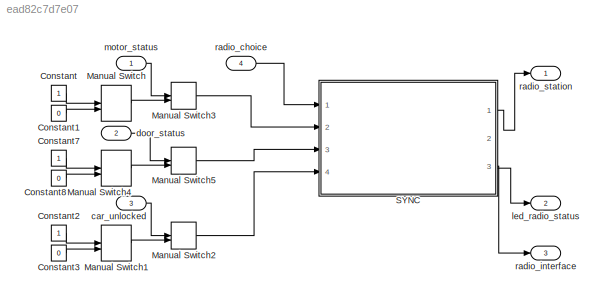
MODEL slx_ead82c7d7e07
KIND model
CONFIG AbsTol = auto
CONFIG EnableMultiTasking = off
CONFIG FixedStep = 0.1
CONFIG MaxStep = auto
CONFIG MinStep = auto
CONFIG RelTol = 1e-3
CONFIG SampleTimeConstraint = Unconstrained
CONFIG Solver = FixedStepAuto
CONFIG SolverName = FixedStepAuto
CONFIG StartTime = 0.0
CONFIG StopTime = 10
BLOCK [Constant] Constant
BLOCK [Constant] Constant1
  Value = 0
BLOCK [Constant] Constant2
BLOCK [Constant] Constant3
  Value = 0
BLOCK [Constant] Constant7
BLOCK [Constant] Constant8
  Value = 0
BLOCK [ManualSwitch] Manual Switch
  CurrentSetting = 0
BLOCK [ManualSwitch] Manual Switch1
  CurrentSetting = 0
BLOCK [ManualSwitch] Manual Switch2
BLOCK [ManualSwitch] Manual Switch3
BLOCK [ManualSwitch] Manual Switch4
  CurrentSetting = 0
BLOCK [ManualSwitch] Manual Switch5
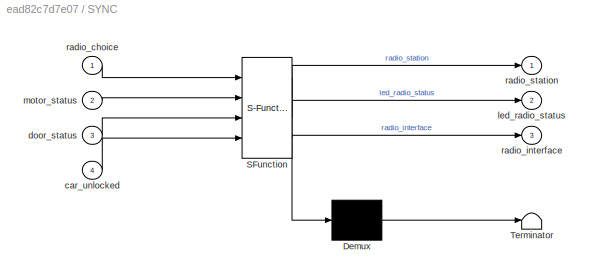
BLOCK [SubSystem] SYNC
  ErrorFcn = Stateflow.Translate.translate
  PermitHierarchicalResolution = ExplicitOnly
  Ports = [4, 3]
  RequestExecContextInheritance = off
  SFBlockType = Chart
  TreatAsAtomicUnit = on
BLOCK [Demux] SYNC/ Demux 
  Outputs = 1
  Ports = [1, 1]
BLOCK [S-Function] SYNC/ SFunction 
  EnableBusSupport = on
  FunctionName = sf_sfun
  PortCounts = [4 4]
  Ports = [4, 4]
  SFcnIsStateOwnerBlock = off
  SFunctionDeploymentMode = off
  Tag = Stateflow S-Function 4
BLOCK [Terminator] SYNC/ Terminator 
BLOCK [Inport] SYNC/car_unlocked
  IconDisplay = Port number
  Port = 4
BLOCK [Inport] SYNC/door_status
  IconDisplay = Port number
  Port = 3
BLOCK [Outport] SYNC/led_radio_status
  IconDisplay = Port number
  Port = 2
BLOCK [Inport] SYNC/motor_status
  IconDisplay = Port number
  Port = 2
BLOCK [Inport] SYNC/radio_choice
  IconDisplay = Port number
BLOCK [Outport] SYNC/radio_interface
  IconDisplay = Port number
  Port = 3
BLOCK [Outport] SYNC/radio_station
  IconDisplay = Port number
BLOCK [Inport] car_unlocked
  IconDisplay = Port number
  Port = 3
BLOCK [Inport] door_status
  IconDisplay = Port number
  Port = 2
BLOCK [Outport] led_radio_status
  IconDisplay = Port number
  Port = 2
BLOCK [Inport] motor_status
  IconDisplay = Port number
BLOCK [Inport] radio_choice
  IconDisplay = Port number
  Port = 4
BLOCK [Outport] radio_interface
  IconDisplay = Port number
  Port = 3
BLOCK [Outport] radio_station
  IconDisplay = Port number
LINE Constant1:1 -> Manual Switch:2
LINE Constant2:1 -> Manual Switch1:1
LINE Constant3:1 -> Manual Switch1:2
LINE Constant7:1 -> Manual Switch4:1
LINE Constant8:1 -> Manual Switch4:2
LINE Constant:1 -> Manual Switch:1
LINE Manual Switch1:1 -> Manual Switch2:2
LINE Manual Switch2:1 -> SYNC:4
LINE Manual Switch3:1 -> SYNC:2
LINE Manual Switch4:1 -> Manual Switch5:2
LINE Manual Switch5:1 -> SYNC:3
LINE Manual Switch:1 -> Manual Switch3:2
LINE SYNC:1 -> radio_station:1
LINE SYNC:2 -> led_radio_status:1
LINE SYNC:3 -> radio_interface:1
LINE car_unlocked:1 -> Manual Switch2:1
LINE door_status:1 -> Manual Switch5:1
LINE motor_status:1 -> Manual Switch3:1
LINE radio_choice:1 -> SYNC:1
CHART SYNC states=7 transitions=31
  STATE_LABEL 'radio_switching'
  STATE_LABEL 'Do not put any code along\nthe transitions that run\ndown the right side!'
  STATE_LABEL '%radio switching'
  STATE_LABEL '[radio_choice == Bahia_FM]'
  STATE_LABEL '{radio_station=88.7;}'
  STATE_LABEL '[radio_choice == Globo_FM]'
  STATE_LABEL '{radio_station=90.1;}'
  STATE_LABEL '[radio_choice == Jovenpan]'
  STATE_LABEL '{radio_station=91.3;}'
  STATE_LABEL '[radio_choice == transamericapop]'
  STATE_LABEL '{radio_station=88.7;}'
  STATE_LABEL '{radio_station=100.1;}'
  STATE_LABEL 'Do not put any code along\nthe transitions that run\ndown the right side!'
  STATE_LABEL 'door_unlock_and_open\n\nentry:\nlock_unlock=1;%porta destrancada\nduring:\nif (door_status==1)%se porta entreaberta\n    radio_interface=1; %interface de radio wellcome\n    led_radio_status=1; %led indicador on\nelseif (door_status==0)%se porta fechada\n    radio_interface=0;%interface de radio off\n    led_radio_status=0;%led indicador off\nend\n'
  STATE_LABEL '<!DOCTYPE HTML PUBLIC "-//W3C//DTD HTML 4.0//EN" "http://www.w3.org/TR/REC-html40/strict.dtd">\n<html><head><meta name="qrichtext" content="1" /><style type="text/css">\np, li { white-space: pre-wrap; }\n</style></head><body align="left" style=" font-family:\'Helvetica\'; font-size:12px; font-weight:400; font-style:normal;">\n<p align="left" style=" margin-top:0px; margin-bottom:0px; margin-left:0px; ma...<+163ch>'
  STATE_LABEL '<!DOCTYPE HTML PUBLIC "-//W3C//DTD HTML 4.0//EN" "http://www.w3.org/TR/REC-html40/strict.dtd">\n<html><head><meta name="qrichtext" content="1" /><style type="text/css">\np, li { white-space: pre-wrap; }\n</style></head><body align="left" style=" font-family:\'Helvetica\'; font-size:12px; font-weight:400; font-style:normal;">\n<p align="left" style=" margin-top:0px; margin-bottom:0px; margin-left:0px; ma...<+158ch>'
  STATE_LABEL 'wellcome_and_radio_interface\n\nentry:\n%if (radio_interface==1)\nradio_station=0;\n%after (5 , sec):\n%end\nexit:\n radio_interface=2;\n'
  STATE_LABEL 'door_lock_and_closed\n\nentry:\nradio_station=1; %blackout radio\nradio_interface=0; %interface de radio off\nled_radio_status=0;%led indicador off\nlock_unlock=0;%porta trancada\n'
